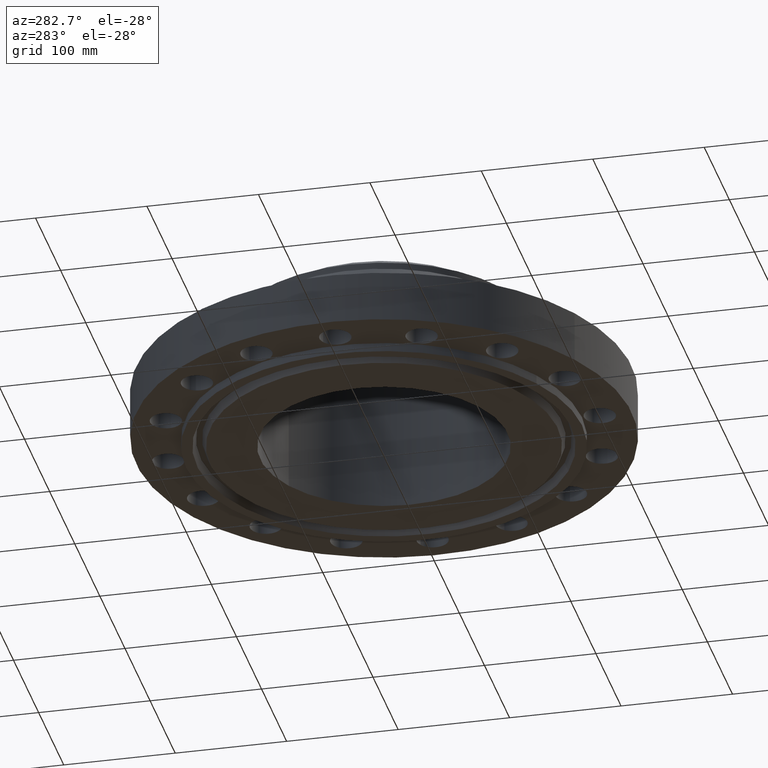
[diagram: clean part render]
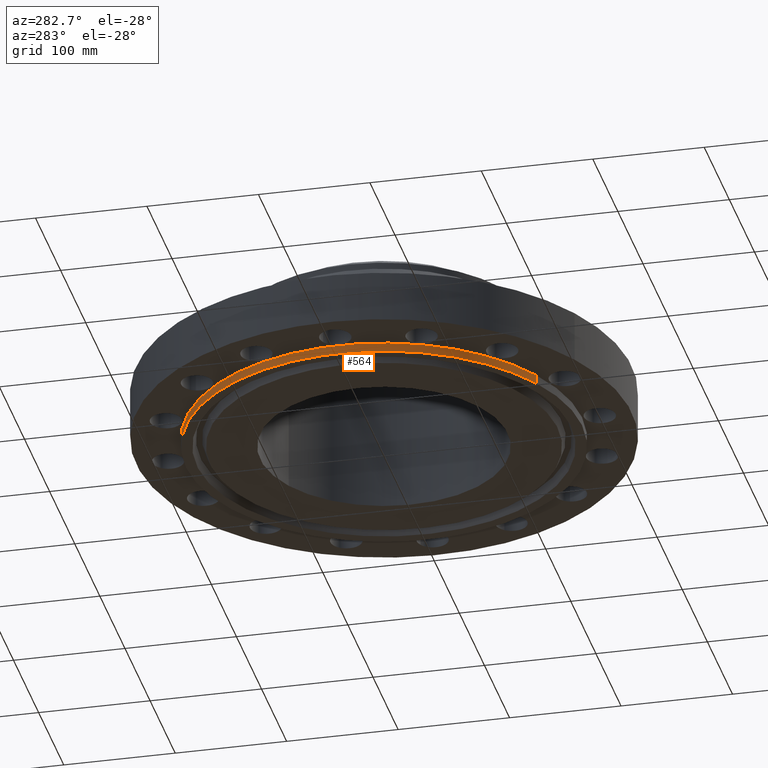
[diagram: same view with one face highlighted and labeled with its STEP entity id]
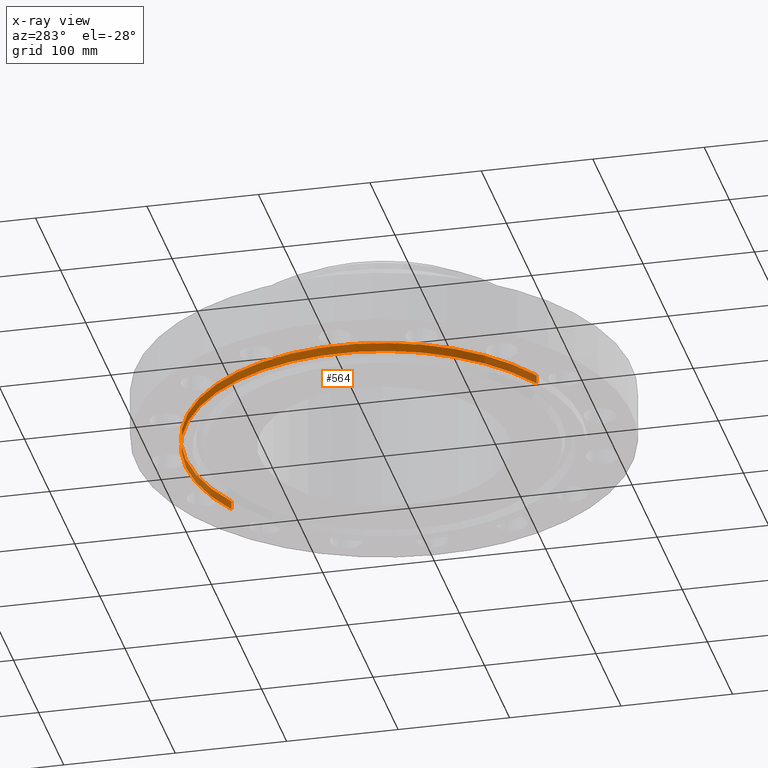
[diagram: x-ray of the same camera — body ghosted, the highlighted face saturated]
A machine part, auxiliary view. The second image highlights one B-rep face of the part: STEP entity #564.
The next image is the same camera in x-ray: the body ghosted, the highlighted face saturated — about 0% of this face is hidden behind the body in this view.
In plain terms, the highlighted cylindrical surface (partial cylindrical patch) has radius 177.8 mm, axis along (0, 0, -1).
Its self-contained STEP definition (entity closure, byte-faithful):
#528=AXIS2_PLACEMENT_3D('Cylinder Axis2P3D',#525,#526,#527) ;
#532=AXIS2_PLACEMENT_3D('Circle Axis2P3D',#530,#531,$) ;
#548=AXIS2_PLACEMENT_3D('Circle Axis2P3D',#546,#547,$) ;
#525=CARTESIAN_POINT('Axis2P3D Location',(0.,0.,2.12350000001)) ;
#530=CARTESIAN_POINT('Axis2P3D Location',(0.,0.,-0.313000000001)) ;
#534=CARTESIAN_POINT('Vertex',(-3.35597877024,-6.14307793326,-0.313000000001)) ;
#536=CARTESIAN_POINT('Vertex',(3.35597877024,6.14307793326,-0.313000000001)) ;
#539=CARTESIAN_POINT('Line Origine',(-3.35597877024,-6.14307793326,-0.156500000001)) ;
#543=CARTESIAN_POINT('Vertex',(-3.35597877024,-6.14307793326,8.39223703654E-016)) ;
#546=CARTESIAN_POINT('Axis2P3D Location',(0.,0.,8.39223703654E-016)) ;
#550=CARTESIAN_POINT('Vertex',(3.35597877024,6.14307793326,8.39223703654E-016)) ;
#553=CARTESIAN_POINT('Line Origine',(3.35597877024,6.14307793326,-0.156500000001)) ;
#526=DIRECTION('Axis2P3D Direction',(0.,0.,-0.0393700787402)) ;
#527=DIRECTION('Axis2P3D XDirection',(0.0188750212049,0.0345504945626,0.)) ;
#531=DIRECTION('Axis2P3D Direction',(0.,0.,-0.0393700787402)) ;
#540=DIRECTION('Vector Direction',(0.,0.,-0.0393700787402)) ;
#547=DIRECTION('Axis2P3D Direction',(0.,0.,-0.0393700787402)) ;
#554=DIRECTION('Vector Direction',(0.,0.,-0.0393700787402)) ;
#541=VECTOR('Line Direction',#540,0.0393700787402) ;
#555=VECTOR('Line Direction',#554,0.0393700787402) ;
#559=ORIENTED_EDGE('',*,*,#538,.F.) ;
#560=ORIENTED_EDGE('',*,*,#545,.T.) ;
#561=ORIENTED_EDGE('',*,*,#552,.T.) ;
#562=ORIENTED_EDGE('',*,*,#557,.F.) ;
#564=ADVANCED_FACE('PartBody',(#563),#529,.T.) ;
#533=CIRCLE('generated circle',#532,7.00000000003) ;
#549=CIRCLE('generated circle',#548,7.00000000003) ;
#529=CYLINDRICAL_SURFACE('generated cylinder',#528,7.00000000003) ;
#538=EDGE_CURVE('',#535,#537,#533,.T.) ;
#545=EDGE_CURVE('',#535,#544,#542,.F.) ;
#552=EDGE_CURVE('',#544,#551,#549,.T.) ;
#557=EDGE_CURVE('',#537,#551,#556,.F.) ;
#558=EDGE_LOOP('',(#559,#560,#561,#562)) ;
#563=FACE_OUTER_BOUND('',#558,.T.) ;
#542=LINE('Line',#539,#541) ;
#556=LINE('Line',#553,#555) ;
#535=VERTEX_POINT('',#534) ;
#537=VERTEX_POINT('',#536) ;
#544=VERTEX_POINT('',#543) ;
#551=VERTEX_POINT('',#550) ;